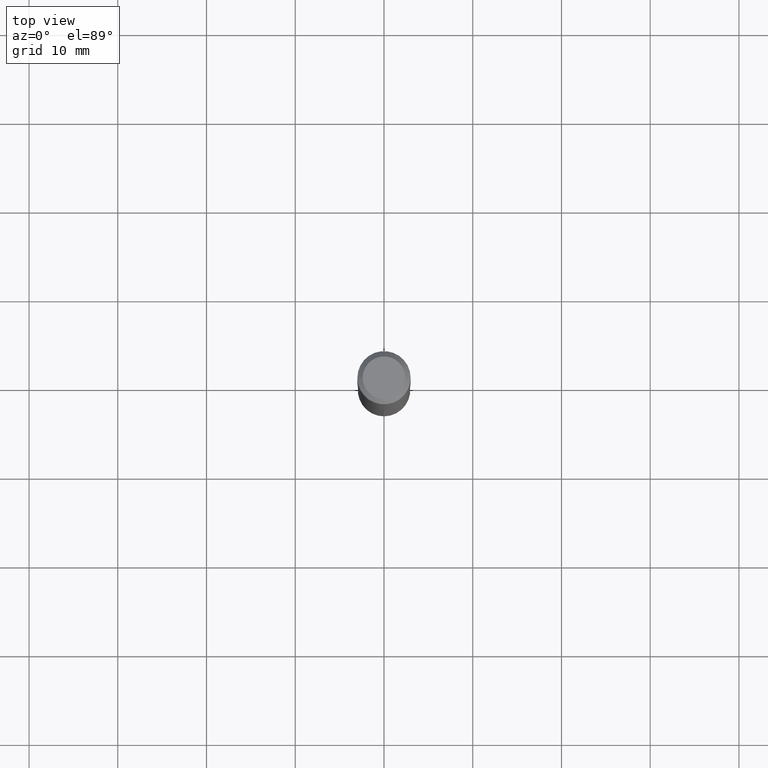
[diagram: clean part render]
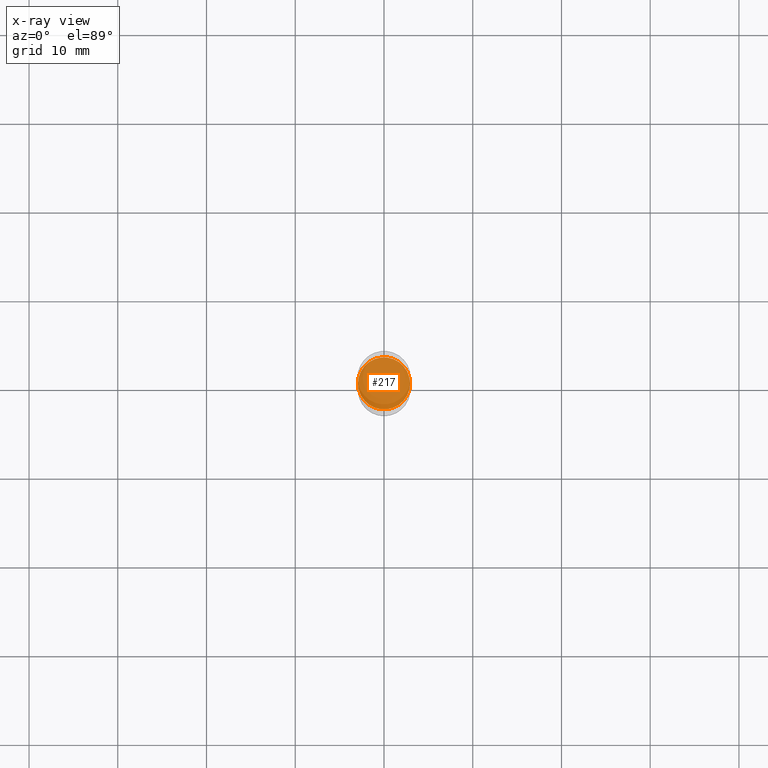
[diagram: x-ray — body ghosted, one internal face saturated and labeled with its STEP entity id]
A machine part, top view, then the same camera in x-ray: the body is ghosted and one INTERNAL B-rep face — a face not visible from any outside direction — is saturated and labeled: STEP entity #217.
In plain terms, the highlighted planar face has unit normal (-0, 0, 1).
Its self-contained STEP definition (entity closure, byte-faithful):
#11 = DIRECTION ( 'NONE',  ( -2.445468806185136597E-29, 3.491481338843145583E-15, 1.000000000000000000 ) ) ;
#42 = FACE_OUTER_BOUND ( 'NONE', #224, .T. ) ;
#53 = DIRECTION ( 'NONE',  ( 1.000000000000000000, -6.982962677686269866E-15, 0.000000000000000000 ) ) ;
#69 = AXIS2_PLACEMENT_3D ( 'NONE', #402, #315, #232 ) ;
#87 = DIRECTION ( 'NONE',  ( 1.000000000000000000, -6.982962677686265922E-15, 4.876176775795935793E-29 ) ) ;
#99 = AXIS2_PLACEMENT_3D ( 'NONE', #455, #116, #87 ) ;
#104 = CIRCLE ( 'NONE', #69, 0.1156500000000000028 ) ;
#116 = DIRECTION ( 'NONE',  ( -2.438088387897960049E-29, 3.491481338843145188E-15, 1.000000000000000000 ) ) ;
#187 = PLANE ( 'NONE',  #99 ) ;
#204 = CARTESIAN_POINT ( 'NONE',  ( -0.1156500000000000028, -4.397816737427025963E-15, -1.495700000000000029 ) ) ;
#217 = ADVANCED_FACE ( 'NONE', ( #42 ), #187, .F. ) ;
#223 = AXIS2_PLACEMENT_3D ( 'NONE', #394, #11, #53 ) ;
#224 = EDGE_LOOP ( 'NONE', ( #318, #314 ) ) ;
#232 = DIRECTION ( 'NONE',  ( 1.000000000000000000, -6.982962677686269866E-15, 0.000000000000000000 ) ) ;
#252 = EDGE_CURVE ( 'NONE', #320, #253, #104, .T. ) ;
#253 = VERTEX_POINT ( 'NONE', #204 ) ;
#277 = EDGE_CURVE ( 'NONE', #253, #320, #392, .T. ) ;
#314 = ORIENTED_EDGE ( 'NONE', *, *, #277, .F. ) ;
#315 = DIRECTION ( 'NONE',  ( -2.445468806185136597E-29, 3.491481338843145583E-15, 1.000000000000000000 ) ) ;
#318 = ORIENTED_EDGE ( 'NONE', *, *, #252, .F. ) ;
#320 = VERTEX_POINT ( 'NONE', #417 ) ;
#392 = CIRCLE ( 'NONE', #223, 0.1156500000000000028 ) ;
#394 = CARTESIAN_POINT ( 'NONE',  ( 3.657687693411109493E-29, -5.222208638507693246E-15, -1.495700000000000029 ) ) ;
#402 = CARTESIAN_POINT ( 'NONE',  ( 3.657687693411109493E-29, -5.222208638507693246E-15, -1.495700000000000029 ) ) ;
#417 = CARTESIAN_POINT ( 'NONE',  ( 0.1156500000000000028, -6.029788272182109985E-15, -1.495700000000000029 ) ) ;
#455 = CARTESIAN_POINT ( 'NONE',  ( 3.657687693411109493E-29, -5.222208638507693246E-15, -1.495700000000000029 ) ) ;